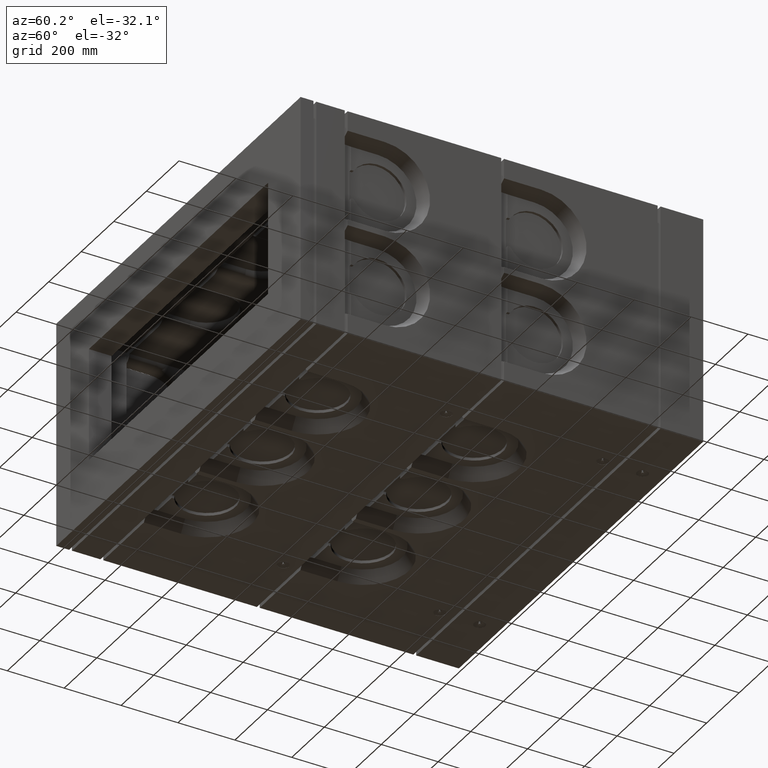
[diagram: clean part render]
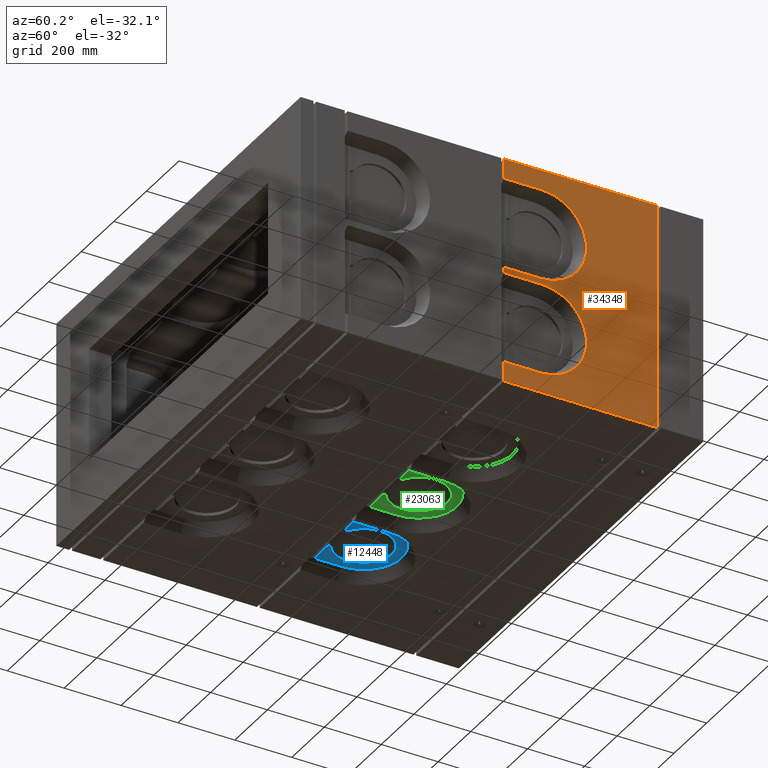
[diagram: same view with three faces highlighted in distinct colors, each labeled with its STEP entity id]
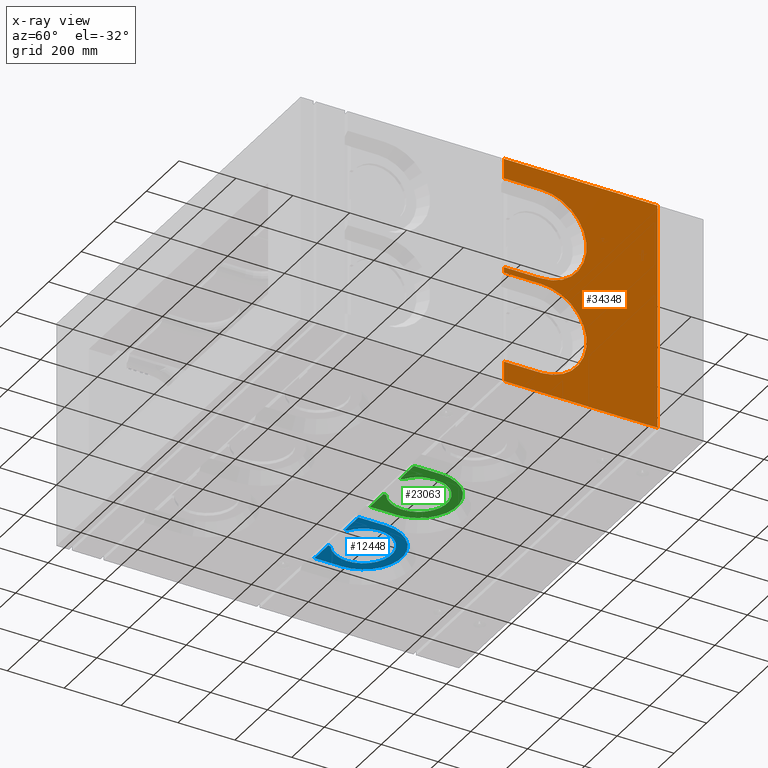
[diagram: x-ray of the same camera — body ghosted, the three highlighted faces saturated]
A machine part, auxiliary view with three faces highlighted in distinct colors.
The next image is the same camera in x-ray (body ghosted, the three faces saturated) — at least one of them is partly hidden behind the body in this view.
Their STEP definitions:

[orange] entity #34348 — the highlighted planar face has unit normal (-1, 0, 0).
#216 = ORIENTED_EDGE ( 'NONE', *, *, #30769, .T. ) ;
#499 = EDGE_CURVE ( 'NONE', #20899, #2917, #10329, .T. ) ;
#581 = DIRECTION ( 'NONE',  ( 0.0000000000000000000, 6.938893903907228378E-16, -1.000000000000000000 ) ) ;
#905 = ORIENTED_EDGE ( 'NONE', *, *, #35056, .T. ) ;
#1451 = DIRECTION ( 'NONE',  ( -8.095376221225034036E-18, 4.996003610813208376E-16, -1.000000000000000000 ) ) ;
#1482 = VERTEX_POINT ( 'NONE', #2257 ) ;
#2028 = VERTEX_POINT ( 'NONE', #8284 ) ;
#2168 = VERTEX_POINT ( 'NONE', #20727 ) ;
#2257 = CARTESIAN_POINT ( 'NONE',  ( 750.0000000000007958, 844.9999999999990905, 330.0000000000003979 ) ) ;
#2629 = CARTESIAN_POINT ( 'NONE',  ( 750.0000000000007958, 1254.999999999999545, -399.9999999999994884 ) ) ;
#2917 = VERTEX_POINT ( 'NONE', #2629 ) ;
#4866 = VECTOR ( 'NONE', #30292, 1000.000000000000000 ) ;
#5076 = VECTOR ( 'NONE', #25583, 1000.000000000000000 ) ;
#5092 = VECTOR ( 'NONE', #13801, 1000.000000000000000 ) ;
#5439 = VERTEX_POINT ( 'NONE', #29995 ) ;
#5643 = LINE ( 'NONE', #22086, #14018 ) ;
#5933 = CARTESIAN_POINT ( 'NONE',  ( 750.0000000000007958, 844.9999999999993179, -9.999999999999676703 ) ) ;
#6128 = CARTESIAN_POINT ( 'NONE',  ( 750.0000000000007958, 1254.999999999999091, 400.0000000000004547 ) ) ;
#8003 = CARTESIAN_POINT ( 'NONE',  ( 750.0000000000007958, 844.9999999999994316, -169.9999999999996589 ) ) ;
#8096 = LINE ( 'NONE', #20614, #22895 ) ;
#8251 = EDGE_CURVE ( 'NONE', #2028, #2168, #23129, .T. ) ;
#8284 = CARTESIAN_POINT ( 'NONE',  ( 750.0000000000007958, 714.9999999999993179, 10.00000000000023093 ) ) ;
#8379 = AXIS2_PLACEMENT_3D ( 'NONE', #33277, #33150, #36115 ) ;
#8552 = EDGE_LOOP ( 'NONE', ( #25511, #22989, #25410, #14397, #17710, #216, #28658, #20414, #18328, #30768, #905, #29933 ) ) ;
#9465 = PLANE ( 'NONE',  #8379 ) ;
#9649 = VERTEX_POINT ( 'NONE', #21701 ) ;
#9684 = VERTEX_POINT ( 'NONE', #25380 ) ;
#9723 = EDGE_CURVE ( 'NONE', #9649, #17159, #14257, .T. ) ;
#9862 = AXIS2_PLACEMENT_3D ( 'NONE', #8003, #31695, #14641 ) ;
#9916 = FACE_OUTER_BOUND ( 'NONE', #8552, .T. ) ;
#10004 = CARTESIAN_POINT ( 'NONE',  ( 750.0000000000007958, 714.9999999999994316, -399.9999999999997726 ) ) ;
#10329 = LINE ( 'NONE', #14354, #26017 ) ;
#10654 = EDGE_CURVE ( 'NONE', #38189, #37723, #14772, .T. ) ;
#10722 = VECTOR ( 'NONE', #19154, 1000.000000000000000 ) ;
#10915 = CARTESIAN_POINT ( 'NONE',  ( 750.0000000000007958, 844.9999999999993179, -9.999999999999676703 ) ) ;
#11869 = LINE ( 'NONE', #27165, #4866 ) ;
#12474 = CARTESIAN_POINT ( 'NONE',  ( 750.0000000000007958, 844.9999999999992042, 170.0000000000003126 ) ) ;
#13499 = CARTESIAN_POINT ( 'NONE',  ( 750.0000000000007958, 1289.999999999999545, -329.9999999999993747 ) ) ;
#13606 = CARTESIAN_POINT ( 'NONE',  ( 750.0000000000007958, 714.9999999999994316, -399.9999999999997726 ) ) ;
#13801 = DIRECTION ( 'NONE',  ( 9.200549324730670404E-32, 1.000000000000000000, 7.216449660063521457E-16 ) ) ;
#13833 = DIRECTION ( 'NONE',  ( -8.095376221225034036E-18, 4.996003610813208376E-16, -1.000000000000000000 ) ) ;
#14018 = VECTOR ( 'NONE', #1451, 1000.000000000000000 ) ;
#14257 = LINE ( 'NONE', #10004, #34560 ) ;
#14354 = CARTESIAN_POINT ( 'NONE',  ( 750.0000000000007958, 1254.999999999999545, -399.9999999999994884 ) ) ;
#14397 = ORIENTED_EDGE ( 'NONE', *, *, #28134, .F. ) ;
#14641 = DIRECTION ( 'NONE',  ( 0.0000000000000000000, 6.938893903907229364E-16, -1.000000000000000000 ) ) ;
#14772 = CIRCLE ( 'NONE', #9862, 159.9999999999999716 ) ;
#14805 = EDGE_CURVE ( 'NONE', #2168, #1482, #30822, .T. ) ;
#16656 = VECTOR ( 'NONE', #26460, 1000.000000000000000 ) ;
#17159 = VERTEX_POINT ( 'NONE', #27214 ) ;
#17660 = VERTEX_POINT ( 'NONE', #24941 ) ;
#17710 = ORIENTED_EDGE ( 'NONE', *, *, #499, .F. ) ;
#18328 = ORIENTED_EDGE ( 'NONE', *, *, #14805, .F. ) ;
#18377 = DIRECTION ( 'NONE',  ( 1.000000000000000000, -5.807612527745709988E-33, -8.095376221225155754E-18 ) ) ;
#19154 = DIRECTION ( 'NONE',  ( -9.133141776677117149E-32, -1.000000000000000000, -6.383782391594655038E-16 ) ) ;
#19928 = LINE ( 'NONE', #13499, #10722 ) ;
#19952 = EDGE_CURVE ( 'NONE', #38189, #17660, #19928, .T. ) ;
#20414 = ORIENTED_EDGE ( 'NONE', *, *, #23041, .F. ) ;
#20614 = CARTESIAN_POINT ( 'NONE',  ( 750.0000000000007958, 844.9999999999990905, 330.0000000000003979 ) ) ;
#20727 = CARTESIAN_POINT ( 'NONE',  ( 750.0000000000007958, 844.9999999999993179, 10.00000000000028599 ) ) ;
#20895 = AXIS2_PLACEMENT_3D ( 'NONE', #12474, #18377, #581 ) ;
#20899 = VERTEX_POINT ( 'NONE', #6128 ) ;
#21701 = CARTESIAN_POINT ( 'NONE',  ( 750.0000000000007958, 714.9999999999990905, 400.0000000000002274 ) ) ;
#21771 = LINE ( 'NONE', #37423, #5076 ) ;
#22086 = CARTESIAN_POINT ( 'NONE',  ( 750.0000000000007958, 714.9999999999994316, -399.9999999999997726 ) ) ;
#22895 = VECTOR ( 'NONE', #35604, 1000.000000000000000 ) ;
#22989 = ORIENTED_EDGE ( 'NONE', *, *, #19952, .T. ) ;
#23041 = EDGE_CURVE ( 'NONE', #1482, #17159, #8096, .T. ) ;
#23129 = LINE ( 'NONE', #31506, #5092 ) ;
#24876 = EDGE_CURVE ( 'NONE', #37723, #5439, #33315, .T. ) ;
#24941 = CARTESIAN_POINT ( 'NONE',  ( 750.0000000000007958, 714.9999999999994316, -329.9999999999997158 ) ) ;
#25380 = CARTESIAN_POINT ( 'NONE',  ( 750.0000000000007958, 714.9999999999994316, -399.9999999999997726 ) ) ;
#25410 = ORIENTED_EDGE ( 'NONE', *, *, #36470, .T. ) ;
#25511 = ORIENTED_EDGE ( 'NONE', *, *, #10654, .F. ) ;
#25583 = DIRECTION ( 'NONE',  ( -9.020795863254529851E-32, -1.000000000000000000, -4.996003610813209362E-16 ) ) ;
#26017 = VECTOR ( 'NONE', #13833, 1000.000000000000000 ) ;
#26303 = CARTESIAN_POINT ( 'NONE',  ( 750.0000000000007958, 844.9999999999995453, -329.9999999999996021 ) ) ;
#26460 = DIRECTION ( 'NONE',  ( -9.200549324730670404E-32, -1.000000000000000000, -7.216449660063521457E-16 ) ) ;
#27165 = CARTESIAN_POINT ( 'NONE',  ( 750.0000000000007958, 1289.999999999999545, -399.9999999999994884 ) ) ;
#27214 = CARTESIAN_POINT ( 'NONE',  ( 750.0000000000007958, 714.9999999999990905, 330.0000000000002842 ) ) ;
#27828 = VECTOR ( 'NONE', #34524, 1000.000000000000000 ) ;
#28134 = EDGE_CURVE ( 'NONE', #2917, #9684, #11869, .T. ) ;
#28658 = ORIENTED_EDGE ( 'NONE', *, *, #9723, .T. ) ;
#29933 = ORIENTED_EDGE ( 'NONE', *, *, #24876, .F. ) ;
#29995 = CARTESIAN_POINT ( 'NONE',  ( 750.0000000000007958, 714.9999999999993179, -9.999999999999786837 ) ) ;
#30207 = LINE ( 'NONE', #13606, #27828 ) ;
#30292 = DIRECTION ( 'NONE',  ( -9.020795863254529851E-32, -1.000000000000000000, -4.996003610813209362E-16 ) ) ;
#30709 = DIRECTION ( 'NONE',  ( -8.095376221225034036E-18, 4.996003610813208376E-16, -1.000000000000000000 ) ) ;
#30768 = ORIENTED_EDGE ( 'NONE', *, *, #8251, .F. ) ;
#30769 = EDGE_CURVE ( 'NONE', #20899, #9649, #21771, .T. ) ;
#30822 = CIRCLE ( 'NONE', #20895, 160.0000000000000000 ) ;
#31506 = CARTESIAN_POINT ( 'NONE',  ( 750.0000000000007958, 844.9999999999993179, 10.00000000000034106 ) ) ;
#31695 = DIRECTION ( 'NONE',  ( 1.000000000000000000, -5.807612527745709988E-33, -8.095376221225155754E-18 ) ) ;
#33150 = DIRECTION ( 'NONE',  ( -1.000000000000000000, 5.807612527745770200E-33, 8.095376221225034036E-18 ) ) ;
#33277 = CARTESIAN_POINT ( 'NONE',  ( 750.0000000000007958, 1289.999999999999545, -399.9999999999994884 ) ) ;
#33315 = LINE ( 'NONE', #10915, #16656 ) ;
#34348 = ADVANCED_FACE ( 'NONE', ( #9916 ), #9465, .F. ) ;
#34524 = DIRECTION ( 'NONE',  ( -8.095376221225034036E-18, 4.996003610813208376E-16, -1.000000000000000000 ) ) ;
#34560 = VECTOR ( 'NONE', #30709, 1000.000000000000000 ) ;
#35056 = EDGE_CURVE ( 'NONE', #2028, #5439, #5643, .T. ) ;
#35604 = DIRECTION ( 'NONE',  ( -9.020795863254529851E-32, -1.000000000000000000, -4.996003610813209362E-16 ) ) ;
#36115 = DIRECTION ( 'NONE',  ( 8.095376221225034036E-18, -4.996003610813208376E-16, 1.000000000000000000 ) ) ;
#36470 = EDGE_CURVE ( 'NONE', #17660, #9684, #30207, .T. ) ;
#37423 = CARTESIAN_POINT ( 'NONE',  ( 750.0000000000007958, 1289.999999999999091, 400.0000000000005684 ) ) ;
#37723 = VERTEX_POINT ( 'NONE', #5933 ) ;
#38189 = VERTEX_POINT ( 'NONE', #26303 ) ;

[blue] entity #12448 — the highlighted planar face has unit normal (-0, 0, -1).
#473 = CARTESIAN_POINT ( 'NONE',  ( -390.9999999999997726, 749.9999999999994316, -359.9999999999996589 ) ) ;
#1014 = ORIENTED_EDGE ( 'NONE', *, *, #36974, .T. ) ;
#2132 = ORIENTED_EDGE ( 'NONE', *, *, #5240, .T. ) ;
#2278 = EDGE_CURVE ( 'NONE', #6420, #20192, #13305, .T. ) ;
#3843 = DIRECTION ( 'NONE',  ( -9.020795863254529851E-32, -1.000000000000000000, -4.996003610813209362E-16 ) ) ;
#3926 = ORIENTED_EDGE ( 'NONE', *, *, #2278, .F. ) ;
#3937 = VERTEX_POINT ( 'NONE', #17515 ) ;
#4384 = ORIENTED_EDGE ( 'NONE', *, *, #9440, .T. ) ;
#5240 = EDGE_CURVE ( 'NONE', #17742, #33285, #24061, .T. ) ;
#5390 = VECTOR ( 'NONE', #3843, 1000.000000000000000 ) ;
#5835 = EDGE_CURVE ( 'NONE', #3937, #6420, #13449, .T. ) ;
#6119 = DIRECTION ( 'NONE',  ( -1.000000000000000000, 0.0000000000000000000, 0.0000000000000000000 ) ) ;
#6420 = VERTEX_POINT ( 'NONE', #31424 ) ;
#7877 = CARTESIAN_POINT ( 'NONE',  ( -288.9999999999998295, 749.9999999999994316, -359.9999999999996589 ) ) ;
#8875 = LINE ( 'NONE', #34861, #34757 ) ;
#9421 = CARTESIAN_POINT ( 'NONE',  ( -390.9999999999997726, 844.9999999999995453, -359.9999999999996589 ) ) ;
#9440 = EDGE_CURVE ( 'NONE', #33285, #20192, #31821, .T. ) ;
#10777 = LINE ( 'NONE', #19384, #21842 ) ;
#11229 = ORIENTED_EDGE ( 'NONE', *, *, #20377, .F. ) ;
#11677 = CARTESIAN_POINT ( 'NONE',  ( -204.9947740763728348, 749.9999999999994316, -359.9999999999997158 ) ) ;
#12376 = ORIENTED_EDGE ( 'NONE', *, *, #5835, .F. ) ;
#12448 = ADVANCED_FACE ( 'NONE', ( #22043 ), #25039, .T. ) ;
#12468 = AXIS2_PLACEMENT_3D ( 'NONE', #38258, #14723, #6119 ) ;
#13120 = DIRECTION ( 'NONE',  ( -8.095376221225034036E-18, 4.996003610813208376E-16, -1.000000000000000000 ) ) ;
#13305 = LINE ( 'NONE', #35973, #5390 ) ;
#13449 = CIRCLE ( 'NONE', #12468, 100.0000000000000284 ) ;
#13608 = CARTESIAN_POINT ( 'NONE',  ( -339.9999999999997726, 844.9999999999995453, -359.9999999999996589 ) ) ;
#14723 = DIRECTION ( 'NONE',  ( -8.095376221225034036E-18, 4.996003610813208376E-16, -1.000000000000000000 ) ) ;
#15353 = LINE ( 'NONE', #9421, #37083 ) ;
#15711 = DIRECTION ( 'NONE',  ( -1.000000000000000000, 0.0000000000000000000, 0.0000000000000000000 ) ) ;
#15940 = CARTESIAN_POINT ( 'NONE',  ( -204.9947740763728348, 844.9999999999995453, -359.9999999999996589 ) ) ;
#16668 = VERTEX_POINT ( 'NONE', #37263 ) ;
#17515 = CARTESIAN_POINT ( 'NONE',  ( -390.9999999999997726, 758.9825599078878895, -359.9999999999996589 ) ) ;
#17685 = EDGE_CURVE ( 'NONE', #16668, #17742, #21246, .T. ) ;
#17700 = DIRECTION ( 'NONE',  ( -9.020795863254529851E-32, -1.000000000000000000, -4.996003610813209362E-16 ) ) ;
#17742 = VERTEX_POINT ( 'NONE', #15940 ) ;
#19274 = DIRECTION ( 'NONE',  ( -1.000000000000000000, 5.807612527745709988E-33, 8.095376221225155754E-18 ) ) ;
#19372 = EDGE_LOOP ( 'NONE', ( #11229, #1014, #25290, #20539, #2132, #4384, #3926, #12376 ) ) ;
#19384 = CARTESIAN_POINT ( 'NONE',  ( -475.0052259236265968, 844.9999999999995453, -359.9999999999996589 ) ) ;
#19651 = VERTEX_POINT ( 'NONE', #473 ) ;
#19884 = DIRECTION ( 'NONE',  ( 4.440892098500627148E-16, 1.000000000000000000, 4.996003610813209362E-16 ) ) ;
#20113 = DIRECTION ( 'NONE',  ( -1.000000000000000000, 5.807612527745709988E-33, 8.095376221225155754E-18 ) ) ;
#20192 = VERTEX_POINT ( 'NONE', #7877 ) ;
#20377 = EDGE_CURVE ( 'NONE', #19651, #3937, #15353, .T. ) ;
#20539 = ORIENTED_EDGE ( 'NONE', *, *, #17685, .T. ) ;
#20560 = CARTESIAN_POINT ( 'NONE',  ( -204.9947740763728348, 844.9999999999995453, -359.9999999999996589 ) ) ;
#21246 = CIRCLE ( 'NONE', #33136, 135.0052259236268526 ) ;
#21842 = VECTOR ( 'NONE', #19884, 1000.000000000000000 ) ;
#22043 = FACE_OUTER_BOUND ( 'NONE', #19372, .T. ) ;
#24061 = LINE ( 'NONE', #20560, #32888 ) ;
#24394 = VECTOR ( 'NONE', #37712, 1000.000000000000000 ) ;
#24567 = CARTESIAN_POINT ( 'NONE',  ( -339.9999999999997726, 844.9999999999995453, -359.9999999999996589 ) ) ;
#25039 = PLANE ( 'NONE',  #29800 ) ;
#25290 = ORIENTED_EDGE ( 'NONE', *, *, #30106, .T. ) ;
#27240 = DIRECTION ( 'NONE',  ( 9.020795863254529851E-32, 1.000000000000000000, 4.996003610813209362E-16 ) ) ;
#28050 = DIRECTION ( 'NONE',  ( -8.095376221225155754E-18, 4.996003610813208376E-16, -1.000000000000000000 ) ) ;
#28871 = CARTESIAN_POINT ( 'NONE',  ( -711.4999999999998863, 749.9999999999994316, -359.9999999999996589 ) ) ;
#29800 = AXIS2_PLACEMENT_3D ( 'NONE', #13608, #28050, #19274 ) ;
#30106 = EDGE_CURVE ( 'NONE', #33007, #16668, #10777, .T. ) ;
#30434 = CARTESIAN_POINT ( 'NONE',  ( -475.0052259236267105, 749.9999999999994316, -359.9999999999996589 ) ) ;
#31424 = CARTESIAN_POINT ( 'NONE',  ( -288.9999999999998295, 758.9825599078878895, -359.9999999999996589 ) ) ;
#31821 = LINE ( 'NONE', #28871, #24394 ) ;
#32888 = VECTOR ( 'NONE', #17700, 1000.000000000000000 ) ;
#33007 = VERTEX_POINT ( 'NONE', #30434 ) ;
#33136 = AXIS2_PLACEMENT_3D ( 'NONE', #24567, #13120, #15711 ) ;
#33285 = VERTEX_POINT ( 'NONE', #11677 ) ;
#34757 = VECTOR ( 'NONE', #20113, 1000.000000000000000 ) ;
#34861 = CARTESIAN_POINT ( 'NONE',  ( -711.4999999999998863, 749.9999999999994316, -359.9999999999996589 ) ) ;
#35973 = CARTESIAN_POINT ( 'NONE',  ( -288.9999999999998295, 758.9825599078878895, -359.9999999999996589 ) ) ;
#36974 = EDGE_CURVE ( 'NONE', #19651, #33007, #8875, .T. ) ;
#37083 = VECTOR ( 'NONE', #27240, 1000.000000000000000 ) ;
#37263 = CARTESIAN_POINT ( 'NONE',  ( -475.0052259236265968, 844.9999999999995453, -359.9999999999996589 ) ) ;
#37712 = DIRECTION ( 'NONE',  ( -1.000000000000000000, 5.807612527745709988E-33, 8.095376221225155754E-18 ) ) ;
#38258 = CARTESIAN_POINT ( 'NONE',  ( -339.9999999999997726, 844.9999999999995453, -359.9999999999996589 ) ) ;

[green] entity #23063 — the highlighted planar face has unit normal (-0, 0, -1).
#582 = EDGE_CURVE ( 'NONE', #5592, #35446, #21426, .T. ) ;
#1774 = VECTOR ( 'NONE', #2952, 1000.000000000000000 ) ;
#1973 = CARTESIAN_POINT ( 'NONE',  ( -50.99999999999971578, 844.9999999999995453, -359.9999999999996589 ) ) ;
#2674 = LINE ( 'NONE', #35274, #32326 ) ;
#2952 = DIRECTION ( 'NONE',  ( -1.000000000000000000, 5.807612527745709988E-33, 8.095376221225155754E-18 ) ) ;
#3102 = PLANE ( 'NONE',  #26884 ) ;
#4768 = EDGE_CURVE ( 'NONE', #5592, #33791, #13554, .T. ) ;
#5137 = CARTESIAN_POINT ( 'NONE',  ( 3.330669073875469621E-13, 844.9999999999995453, -359.9999999999996589 ) ) ;
#5207 = VECTOR ( 'NONE', #5250, 1000.000000000000000 ) ;
#5250 = DIRECTION ( 'NONE',  ( 9.020795863254529851E-32, 1.000000000000000000, 4.996003610813209362E-16 ) ) ;
#5474 = CARTESIAN_POINT ( 'NONE',  ( 3.330669073875469621E-13, 844.9999999999995453, -359.9999999999996589 ) ) ;
#5592 = VERTEX_POINT ( 'NONE', #10456 ) ;
#6037 = DIRECTION ( 'NONE',  ( -9.020795863254529851E-32, -1.000000000000000000, -4.996003610813209362E-16 ) ) ;
#6327 = ORIENTED_EDGE ( 'NONE', *, *, #30981, .T. ) ;
#6447 = CARTESIAN_POINT ( 'NONE',  ( -711.4999999999998863, 749.9999999999994316, -359.9999999999996589 ) ) ;
#6716 = DIRECTION ( 'NONE',  ( -1.000000000000000000, 5.807612527745709988E-33, 8.095376221225155754E-18 ) ) ;
#6905 = LINE ( 'NONE', #8738, #37489 ) ;
#7050 = CARTESIAN_POINT ( 'NONE',  ( 51.00000000000027001, 758.9825599078878895, -359.9999999999997158 ) ) ;
#8419 = DIRECTION ( 'NONE',  ( -8.095376221225155754E-18, 4.996003610813208376E-16, -1.000000000000000000 ) ) ;
#8738 = CARTESIAN_POINT ( 'NONE',  ( 135.0052259236272789, 844.9999999999995453, -359.9999999999996589 ) ) ;
#9010 = CIRCLE ( 'NONE', #12212, 135.0052259236268810 ) ;
#9093 = EDGE_CURVE ( 'NONE', #33791, #33724, #2674, .T. ) ;
#9648 = VERTEX_POINT ( 'NONE', #7050 ) ;
#10456 = CARTESIAN_POINT ( 'NONE',  ( -50.99999999999971578, 749.9999999999994316, -359.9999999999997158 ) ) ;
#10665 = ORIENTED_EDGE ( 'NONE', *, *, #582, .F. ) ;
#11593 = DIRECTION ( 'NONE',  ( -1.000000000000000000, 5.807612527745709988E-33, 8.095376221225155754E-18 ) ) ;
#12175 = CARTESIAN_POINT ( 'NONE',  ( 51.00000000000027001, 758.9825599078878895, -359.9999999999997158 ) ) ;
#12212 = AXIS2_PLACEMENT_3D ( 'NONE', #5137, #17079, #16827 ) ;
#12373 = ORIENTED_EDGE ( 'NONE', *, *, #21972, .F. ) ;
#13065 = CARTESIAN_POINT ( 'NONE',  ( -135.0052259236265115, 749.9999999999994316, -359.9999999999997158 ) ) ;
#13377 = CARTESIAN_POINT ( 'NONE',  ( 135.0052259236272789, 844.9999999999995453, -359.9999999999996589 ) ) ;
#13554 = LINE ( 'NONE', #6447, #31567 ) ;
#13910 = DIRECTION ( 'NONE',  ( -9.020795863254529851E-32, -1.000000000000000000, -4.996003610813209362E-16 ) ) ;
#15579 = ORIENTED_EDGE ( 'NONE', *, *, #27533, .T. ) ;
#15909 = ORIENTED_EDGE ( 'NONE', *, *, #9093, .T. ) ;
#16507 = CARTESIAN_POINT ( 'NONE',  ( 3.330669073875469621E-13, 844.9999999999995453, -359.9999999999996589 ) ) ;
#16827 = DIRECTION ( 'NONE',  ( -1.000000000000000000, 0.0000000000000000000, 0.0000000000000000000 ) ) ;
#16927 = VERTEX_POINT ( 'NONE', #23094 ) ;
#17079 = DIRECTION ( 'NONE',  ( -8.095376221225034036E-18, 4.996003610813208376E-16, -1.000000000000000000 ) ) ;
#17590 = EDGE_LOOP ( 'NONE', ( #10665, #25025, #15909, #15579, #20228, #6327, #23430, #12373 ) ) ;
#20228 = ORIENTED_EDGE ( 'NONE', *, *, #31420, .T. ) ;
#20477 = AXIS2_PLACEMENT_3D ( 'NONE', #16507, #34600, #37326 ) ;
#21426 = LINE ( 'NONE', #1973, #5207 ) ;
#21972 = EDGE_CURVE ( 'NONE', #35446, #9648, #30953, .T. ) ;
#22239 = CARTESIAN_POINT ( 'NONE',  ( -50.99999999999971578, 758.9825599078878895, -359.9999999999997158 ) ) ;
#23063 = ADVANCED_FACE ( 'NONE', ( #23807 ), #3102, .T. ) ;
#23094 = CARTESIAN_POINT ( 'NONE',  ( 51.00000000000027001, 749.9999999999994316, -359.9999999999997158 ) ) ;
#23225 = DIRECTION ( 'NONE',  ( 4.440892098500627148E-16, 1.000000000000000000, 4.996003610813209362E-16 ) ) ;
#23430 = ORIENTED_EDGE ( 'NONE', *, *, #25083, .F. ) ;
#23542 = VERTEX_POINT ( 'NONE', #27705 ) ;
#23578 = VECTOR ( 'NONE', #6037, 1000.000000000000000 ) ;
#23807 = FACE_OUTER_BOUND ( 'NONE', #17590, .T. ) ;
#25025 = ORIENTED_EDGE ( 'NONE', *, *, #4768, .T. ) ;
#25083 = EDGE_CURVE ( 'NONE', #9648, #16927, #37522, .T. ) ;
#26884 = AXIS2_PLACEMENT_3D ( 'NONE', #5474, #8419, #11593 ) ;
#27533 = EDGE_CURVE ( 'NONE', #33724, #34450, #9010, .T. ) ;
#27705 = CARTESIAN_POINT ( 'NONE',  ( 135.0052259236272789, 749.9999999999994316, -359.9999999999996589 ) ) ;
#30953 = CIRCLE ( 'NONE', #20477, 100.0000000000000284 ) ;
#30981 = EDGE_CURVE ( 'NONE', #23542, #16927, #34293, .T. ) ;
#31018 = CARTESIAN_POINT ( 'NONE',  ( -135.0052259236265115, 844.9999999999995453, -359.9999999999996589 ) ) ;
#31420 = EDGE_CURVE ( 'NONE', #34450, #23542, #6905, .T. ) ;
#31567 = VECTOR ( 'NONE', #6716, 1000.000000000000000 ) ;
#32326 = VECTOR ( 'NONE', #23225, 1000.000000000000000 ) ;
#33724 = VERTEX_POINT ( 'NONE', #31018 ) ;
#33791 = VERTEX_POINT ( 'NONE', #13065 ) ;
#34293 = LINE ( 'NONE', #35578, #1774 ) ;
#34450 = VERTEX_POINT ( 'NONE', #13377 ) ;
#34600 = DIRECTION ( 'NONE',  ( -8.095376221225034036E-18, 4.996003610813208376E-16, -1.000000000000000000 ) ) ;
#35274 = CARTESIAN_POINT ( 'NONE',  ( -135.0052259236265115, 844.9999999999995453, -359.9999999999996589 ) ) ;
#35446 = VERTEX_POINT ( 'NONE', #22239 ) ;
#35578 = CARTESIAN_POINT ( 'NONE',  ( -711.4999999999998863, 749.9999999999994316, -359.9999999999996589 ) ) ;
#37326 = DIRECTION ( 'NONE',  ( -1.000000000000000000, 0.0000000000000000000, 0.0000000000000000000 ) ) ;
#37489 = VECTOR ( 'NONE', #13910, 1000.000000000000000 ) ;
#37522 = LINE ( 'NONE', #12175, #23578 ) ;